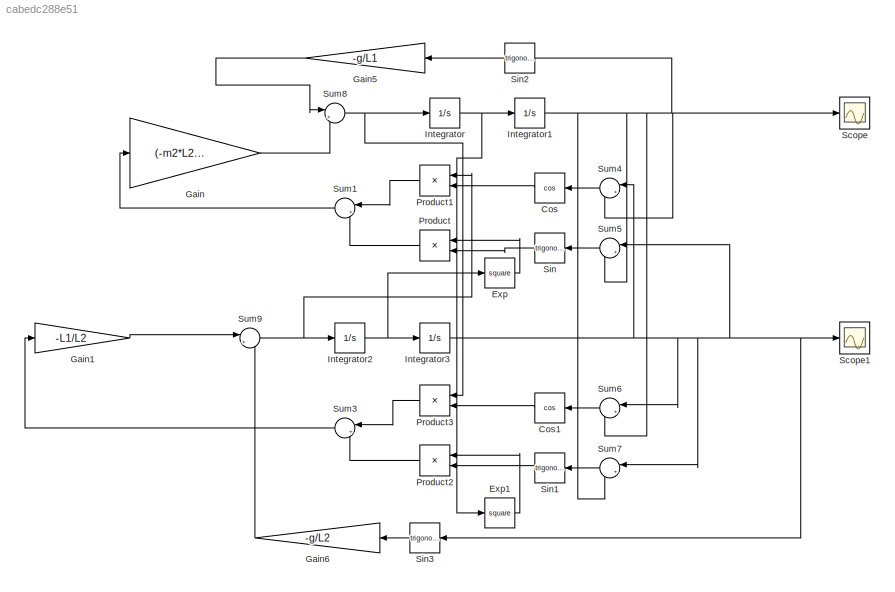
MODEL slx_cabedc288e51
KIND model
CONFIG AbsTol = auto
CONFIG EnableMultiTasking = off
CONFIG FixedStep = auto
CONFIG MaxStep = auto
CONFIG MinStep = auto
CONFIG RelTol = 1e-3
CONFIG SampleTimeConstraint = Unconstrained
CONFIG SolverName = VariableStepAuto
CONFIG StartTime = 0.0
CONFIG StopTime = 10.0
BLOCK [Trigonometry] Cos
  NameLocation = top
  Operator = cos
BLOCK [Trigonometry] Cos1
  NameLocation = top
  Operator = cos
BLOCK [Math] Exp
  Operator = square
BLOCK [Math] Exp1
  Operator = square
BLOCK [Gain] Gain
  Gain = (-m2*L2)/((m1+m2)*L1)
BLOCK [Gain] Gain1
  Gain = -L1/L2
BLOCK [Gain] Gain5
  Gain = -g/L1
  NameLocation = top
BLOCK [Gain] Gain6
  Gain = -g/L2
  NameLocation = top
BLOCK [Integrator] Integrator
BLOCK [Integrator] Integrator1
BLOCK [Integrator] Integrator2
BLOCK [Integrator] Integrator3
  InitialCondition = 0.61
BLOCK [Product] Product
  NameLocation = top
BLOCK [Product] Product1
  NameLocation = top
BLOCK [Product] Product2
  NameLocation = top
BLOCK [Product] Product3
  NameLocation = top
BLOCK [Scope] Scope
  Floating = off
  NumInputPorts = 1
  ScopeSpecificationString = Simulink.scopes.TimeScopeBlockCfg('CurrentConfiguration', extmgr.ConfigurationSet(extmgr.Configuration('Core','General UI',true),extmgr.Configuration('Core','Source UI',true),extmgr.Configuration('Sources','WiredSimulink',true),extmgr.Configuration('Visuals','Time Domain',true,'SerializedDisplays',{struct('MinYLimReal','-0.38586','MaxYLimReal','0.38315','YLabelReal','','MinYLimMag','0.00000','MaxY...<+1364ch>
BLOCK [Scope] Scope1
  Floating = off
  NumInputPorts = 1
  ScopeSpecificationString = Simulink.scopes.TimeScopeBlockCfg('CurrentConfiguration', extmgr.ConfigurationSet(extmgr.Configuration('Core','General UI',true),extmgr.Configuration('Core','Source UI',true),extmgr.Configuration('Sources','WiredSimulink',true,'DataLoggingVariableName','ScopeData1'),extmgr.Configuration('Visuals','Time Domain',true,'SerializedDisplays',{struct('MinYLimReal','-0.7361','MaxYLimReal','0.75957','YLabe...<+1401ch>
BLOCK [Trigonometry] Sin
  NameLocation = top
BLOCK [Trigonometry] Sin1
  NameLocation = top
BLOCK [Trigonometry] Sin2
  NameLocation = top
BLOCK [Trigonometry] Sin3
  NameLocation = top
BLOCK [Sum] Sum1
  Inputs = |+-
  NameLocation = top
BLOCK [Sum] Sum3
  Inputs = |++
  NameLocation = top
BLOCK [Sum] Sum4
  Inputs = |+-
  NameLocation = top
BLOCK [Sum] Sum5
  Inputs = |+-
  NameLocation = top
BLOCK [Sum] Sum6
  Inputs = |+-
  NameLocation = top
BLOCK [Sum] Sum7
  Inputs = |+-
  NameLocation = top
BLOCK [Sum] Sum8
  Inputs = |++
BLOCK [Sum] Sum9
  Inputs = |++
LINE Cos1:1 -> Product3:2
LINE Cos:1 -> Product1:2
LINE Exp1:1 -> Product2:1
LINE Exp:1 -> Product:1
LINE Gain1:1 -> Sum9:1
LINE Gain5:1 -> Sum8:1
LINE Gain6:1 -> Sum9:2
LINE Gain:1 -> Sum8:2
NET Integrator1:1 -> Scope:1, Sin2:1, Sum4:2, Sum5:2, Sum6:2, Sum7:2
NET Integrator2:1 -> Exp:1, Integrator3:1
NET Integrator3:1 -> Scope1:1, Sin3:1, Sum4:1, Sum5:1, Sum6:1, Sum7:1
NET Integrator:1 -> Exp1:1, Integrator1:1
LINE Product1:1 -> Sum1:1
LINE Product2:1 -> Sum3:2
LINE Product3:1 -> Sum3:1
LINE Product:1 -> Sum1:2
LINE Sin1:1 -> Product2:2
LINE Sin2:1 -> Gain5:1
LINE Sin3:1 -> Gain6:1
LINE Sin:1 -> Product:2
LINE Sum1:1 -> Gain:1
LINE Sum3:1 -> Gain1:1
LINE Sum4:1 -> Cos:1
LINE Sum5:1 -> Sin:1
LINE Sum6:1 -> Cos1:1
LINE Sum7:1 -> Sin1:1
NET Sum8:1 -> Integrator:1, Product3:1
NET Sum9:1 -> Integrator2:1, Product1:1
note: NET lines group one-source signal fan-out (src -> all destinations, sorted); 1:1 wires keep LINE
